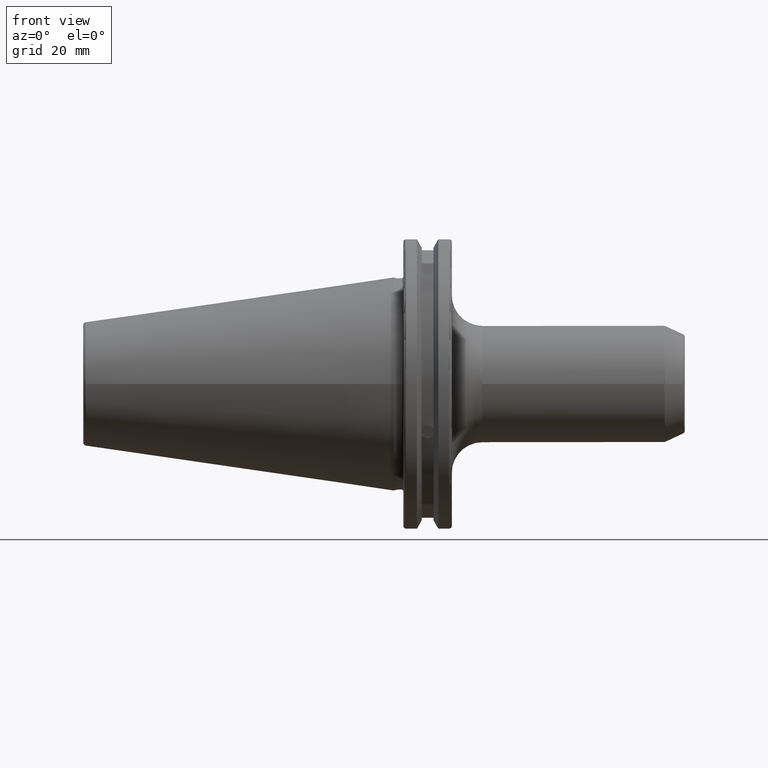
[diagram: clean part render]
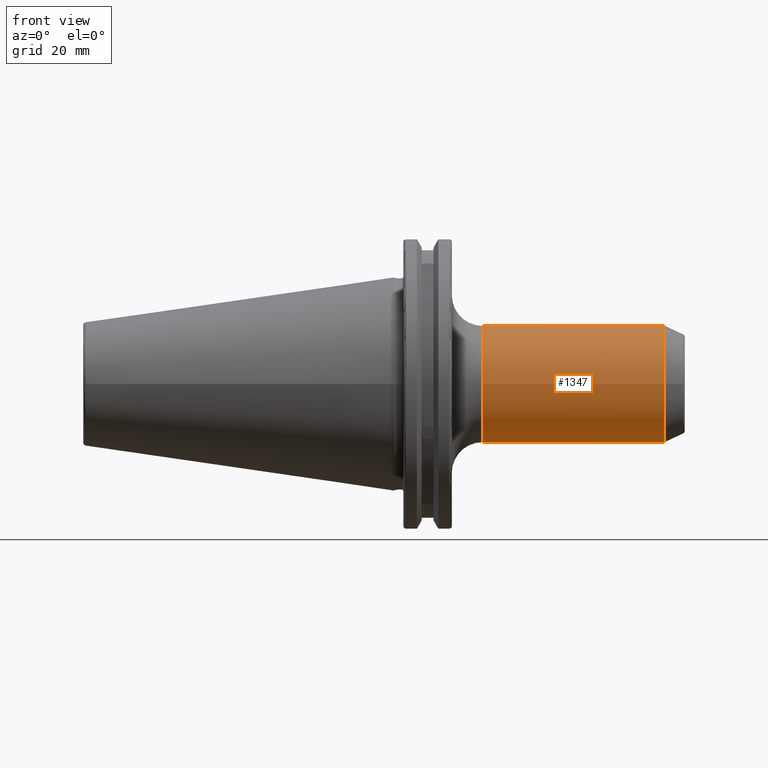
[diagram: same view with one face highlighted and labeled with its STEP entity id]
A machine part, front view. The second image highlights one B-rep face of the part: STEP entity #1347.
In plain terms, the highlighted cylindrical surface (bore or boss wall) has radius 19.05 mm, axis along (1, 0, 0).
Its self-contained STEP definition (entity closure, byte-faithful):
#68=FACE_BOUND('',#197,.T.);
#91=CYLINDRICAL_SURFACE('',#1456,19.05);
#115=FACE_OUTER_BOUND('',#196,.T.);
#196=EDGE_LOOP('',(#927,#928,#929,#930,#931,#932));
#197=EDGE_LOOP('',(#933,#934));
#287=CIRCLE('',#1452,19.05);
#290=CIRCLE('',#1455,19.05);
#291=CIRCLE('',#1457,19.05);
#292=CIRCLE('',#1458,19.05);
#361=LINE('',#2102,#449);
#449=VECTOR('',#1628,19.05);
#535=B_SPLINE_CURVE_WITH_KNOTS('',3,(#2010,#2011,#2012,#2013,#2014,#2015,
#2016,#2017,#2018,#2019,#2020,#2021,#2022,#2023,#2024,#2025,#2026,#2027),
 .UNSPECIFIED.,.F.,.F.,(4,2,2,2,2,2,2,2,4),(0.928108570663766,1.16422901787512,
1.40034946508647,1.628283303207,1.85621714132753,2.08415097944806,2.31208481756859,
2.54820526477995,2.7843257119913),.UNSPECIFIED.);
#536=B_SPLINE_CURVE_WITH_KNOTS('',3,(#2031,#2032,#2033,#2034,#2035,#2036,
#2037,#2038,#2039,#2040,#2041,#2042,#2043,#2044,#2045,#2046,#2047,#2048,
#2049),.UNSPECIFIED.,.F.,.F.,(4,2,2,2,3,2,2,2,4),(2.7843257119913,3.02044615920265,
3.256566606414,3.48450044453453,3.71243428265506,3.9403681207756,4.16830195889613,
4.40442240610748,4.64054285331883),.UNSPECIFIED.);
#565=VERTEX_POINT('',#2008);
#566=VERTEX_POINT('',#2009);
#570=VERTEX_POINT('',#2091);
#571=VERTEX_POINT('',#2092);
#573=VERTEX_POINT('',#2099);
#574=VERTEX_POINT('',#2100);
#703=EDGE_CURVE('',#565,#566,#535,.T.);
#706=EDGE_CURVE('',#566,#565,#536,.T.);
#710=EDGE_CURVE('',#570,#571,#287,.T.);
#713=EDGE_CURVE('',#571,#570,#290,.T.);
#714=EDGE_CURVE('',#573,#574,#291,.T.);
#715=EDGE_CURVE('',#573,#570,#361,.T.);
#716=EDGE_CURVE('',#574,#573,#292,.T.);
#927=ORIENTED_EDGE('',*,*,#714,.F.);
#928=ORIENTED_EDGE('',*,*,#715,.T.);
#929=ORIENTED_EDGE('',*,*,#713,.F.);
#930=ORIENTED_EDGE('',*,*,#710,.F.);
#931=ORIENTED_EDGE('',*,*,#715,.F.);
#932=ORIENTED_EDGE('',*,*,#716,.F.);
#933=ORIENTED_EDGE('',*,*,#703,.T.);
#934=ORIENTED_EDGE('',*,*,#706,.T.);
#1347=ADVANCED_FACE('',(#115,#68),#91,.T.);
#1452=AXIS2_PLACEMENT_3D('',#2093,#1616,#1617);
#1455=AXIS2_PLACEMENT_3D('',#2097,#1622,#1623);
#1456=AXIS2_PLACEMENT_3D('',#2098,#1624,#1625);
#1457=AXIS2_PLACEMENT_3D('',#2101,#1626,#1627);
#1458=AXIS2_PLACEMENT_3D('',#2103,#1629,#1630);
#1616=DIRECTION('center_axis',(-1.,0.,0.));
#1617=DIRECTION('ref_axis',(0.,-1.,-1.22464679914735E-16));
#1622=DIRECTION('center_axis',(-1.,0.,0.));
#1623=DIRECTION('ref_axis',(0.,-1.,-1.22464679914735E-16));
#1624=DIRECTION('center_axis',(1.,0.,0.));
#1625=DIRECTION('ref_axis',(0.,1.,0.));
#1626=DIRECTION('center_axis',(1.,0.,0.));
#1627=DIRECTION('ref_axis',(0.,-1.,1.83697019872103E-16));
#1628=DIRECTION('',(-1.,0.,0.));
#1629=DIRECTION('center_axis',(1.,0.,0.));
#1630=DIRECTION('ref_axis',(0.,-1.,1.83697019872103E-16));
#2008=CARTESIAN_POINT('',(79.45,19.05,0.));
#2009=CARTESIAN_POINT('',(66.35,19.05,0.));
#2010=CARTESIAN_POINT('Ctrl Pts',(79.45,19.05,-1.11022302462516E-15));
#2011=CARTESIAN_POINT('Ctrl Pts',(79.45,19.05,0.78706815737117));
#2012=CARTESIAN_POINT('Ctrl Pts',(79.2479432529699,18.9964768981653,1.60408318038808));
#2013=CARTESIAN_POINT('Ctrl Pts',(78.4873824524317,18.8171755417142,3.05828629832273));
#2014=CARTESIAN_POINT('Ctrl Pts',(77.9302323112765,18.6945332007022,3.69656694422684));
#2015=CARTESIAN_POINT('Ctrl Pts',(76.7318691936214,18.479810000723,4.65079822554419));
#2016=CARTESIAN_POINT('Ctrl Pts',(76.0133249111586,18.3721221203829,5.04378599022291));
#2017=CARTESIAN_POINT('Ctrl Pts',(74.4773831603971,18.2226152947941,5.55976028045259));
#2018=CARTESIAN_POINT('Ctrl Pts',(73.6597794604018,18.1826757267597,5.68267572675969));
#2019=CARTESIAN_POINT('Ctrl Pts',(72.1402205395982,18.1826757267597,5.68267572675969));
#2020=CARTESIAN_POINT('Ctrl Pts',(71.3226168396028,18.2226152947941,5.5597602804526));
#2021=CARTESIAN_POINT('Ctrl Pts',(69.7866750888413,18.3721221203829,5.04378599022291));
#2022=CARTESIAN_POINT('Ctrl Pts',(69.0681308063786,18.479810000723,4.65079822554419));
#2023=CARTESIAN_POINT('Ctrl Pts',(67.8697676887235,18.6945332007022,3.69656694422684));
#2024=CARTESIAN_POINT('Ctrl Pts',(67.3126175475683,18.8171755417142,3.05828629832273));
#2025=CARTESIAN_POINT('Ctrl Pts',(66.5520567470301,18.9964768981653,1.60408318038809));
#2026=CARTESIAN_POINT('Ctrl Pts',(66.35,19.05,0.787068157371176));
#2027=CARTESIAN_POINT('Ctrl Pts',(66.35,19.05,3.7470027081099E-15));
#2031=CARTESIAN_POINT('Ctrl Pts',(66.35,19.05,1.2490009027033E-15));
#2032=CARTESIAN_POINT('Ctrl Pts',(66.35,19.05,-0.787068157371169));
#2033=CARTESIAN_POINT('Ctrl Pts',(66.5520567470301,18.9964768981653,-1.60408318038808));
#2034=CARTESIAN_POINT('Ctrl Pts',(67.3126175475683,18.8171755417142,-3.05828629832272));
#2035=CARTESIAN_POINT('Ctrl Pts',(67.8697676887235,18.6945332007022,-3.69656694422684));
#2036=CARTESIAN_POINT('Ctrl Pts',(69.0681308063786,18.479810000723,-4.65079822554419));
#2037=CARTESIAN_POINT('Ctrl Pts',(69.7866750888413,18.3721221203829,-5.0437859902229));
#2038=CARTESIAN_POINT('Ctrl Pts',(71.3226168396028,18.2226152947941,-5.5597602804526));
#2039=CARTESIAN_POINT('Ctrl Pts',(72.1402205395982,18.1826757267597,-5.68267572675969));
#2040=CARTESIAN_POINT('Ctrl Pts',(72.9,18.1826757267597,-5.68267572675969));
#2041=CARTESIAN_POINT('Ctrl Pts',(73.6597794604018,18.1826757267597,-5.68267572675969));
#2042=CARTESIAN_POINT('Ctrl Pts',(74.4773831603971,18.2226152947941,-5.55976028045259));
#2043=CARTESIAN_POINT('Ctrl Pts',(76.0133249111586,18.3721221203829,-5.04378599022291));
#2044=CARTESIAN_POINT('Ctrl Pts',(76.7318691936214,18.479810000723,-4.65079822554419));
#2045=CARTESIAN_POINT('Ctrl Pts',(77.9302323112765,18.6945332007022,-3.69656694422684));
#2046=CARTESIAN_POINT('Ctrl Pts',(78.4873824524317,18.8171755417142,-3.05828629832273));
#2047=CARTESIAN_POINT('Ctrl Pts',(79.2479432529699,18.9964768981653,-1.60408318038808));
#2048=CARTESIAN_POINT('Ctrl Pts',(79.45,19.05,-0.787068157371171));
#2049=CARTESIAN_POINT('Ctrl Pts',(79.45,19.05,-4.16333634234434E-16));
#2091=CARTESIAN_POINT('',(29.05,-19.05,-2.33295215237571E-15));
#2092=CARTESIAN_POINT('',(29.05,-2.33295215237571E-15,-19.05));
#2093=CARTESIAN_POINT('Origin',(29.05,0.,0.));
#2097=CARTESIAN_POINT('Origin',(29.05,0.,0.));
#2098=CARTESIAN_POINT('Origin',(53.9046269462229,0.,0.));
#2099=CARTESIAN_POINT('',(88.5375592298029,-19.05,-2.33295215237571E-15));
#2100=CARTESIAN_POINT('',(88.5375592298029,-2.33295215237571E-15,19.05));
#2101=CARTESIAN_POINT('Origin',(88.5375592298029,0.,0.));
#2102=CARTESIAN_POINT('',(53.9046269462229,-19.05,-2.33295215237571E-15));
#2103=CARTESIAN_POINT('Origin',(88.5375592298029,0.,0.));